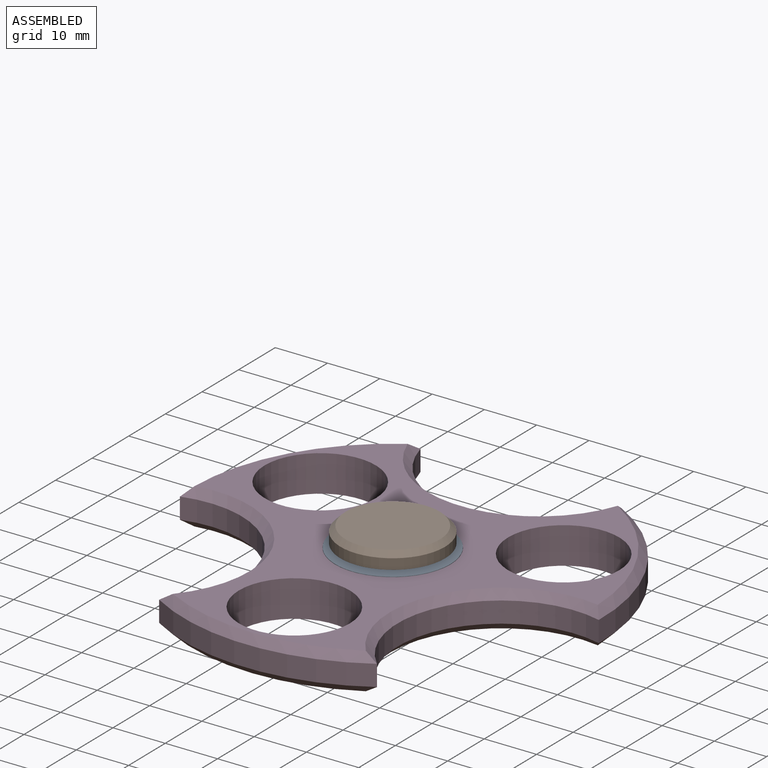
[diagram: assembled view]
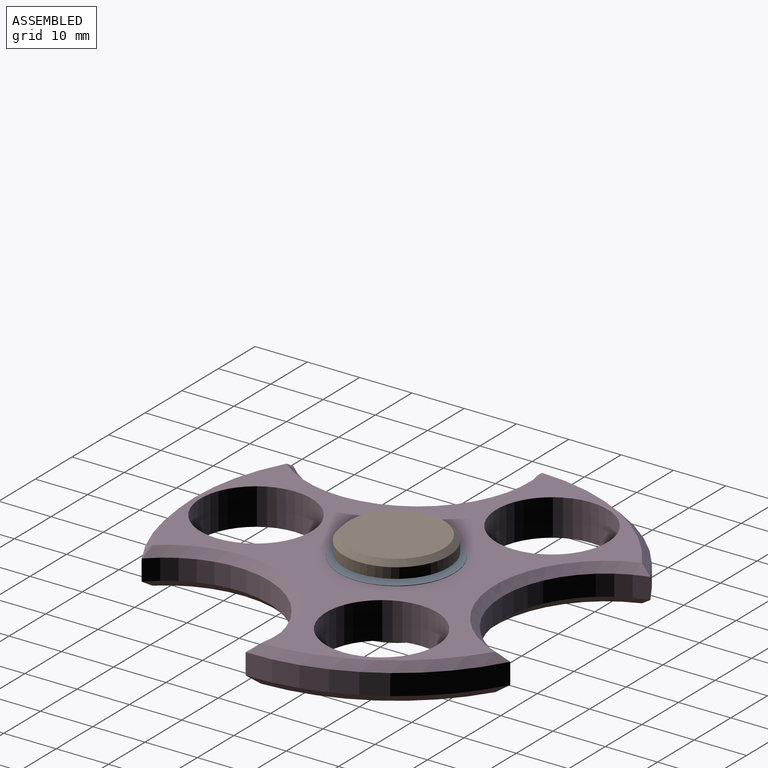
[diagram: assembled view, second angle]
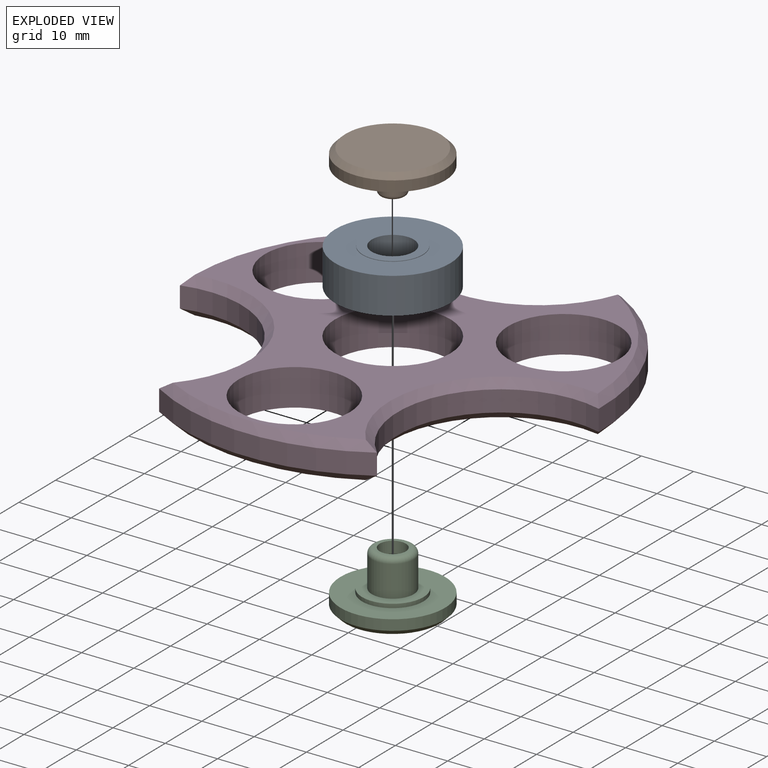
[diagram: exploded view]
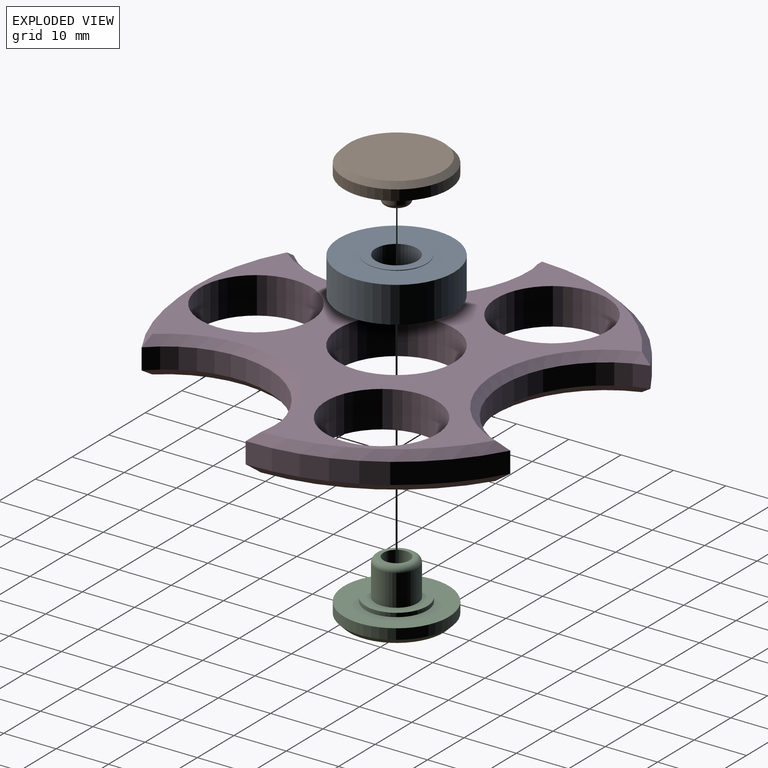
[diagram: exploded view, second angle]
ASSEMBLY  parts=4 mates=3
PART A: 8 faces, bbox 22x22x7.1 mm
  f0: cylinder r=11mm len=22mm, axis (0,0,-1), area 476.9mm2, adj f1,f2
  f1: plane 22x22mm, normal (0,0,1), area 276.3mm2, adj f0,f3
  f2: plane 22x22mm, normal (0,0,-1), area 276.3mm2, adj f0,f5
  f3: cylinder r=5.75mm len=11.5mm, axis (0,0,-1), area 3.6mm2, adj f1,f6
  f4: cylinder r=4mm len=8mm, axis (0,0,-1), area 178.4mm2, adj f6,f7
  f5: cylinder r=5.75mm len=11.5mm, axis (0,0,-1), area 3.6mm2, adj f2,f7
  f6: plane 11.5x11.5mm, normal (0,0,1), area 53.6mm2, adj f3,f4
  f7: plane 11.5x11.5mm, normal (0,0,-1), area 53.6mm2, adj f4,f5
PART B: 9 faces, bbox 20x20x8 mm
  f0: cylinder r=10mm len=20mm, axis (0,0,-1), area 125.7mm2, adj f1,f5
  f1: plane 20x20mm, normal (0,0,1), area 205.7mm2, adj f0,f3
  f2: plane 18x18mm, normal (0,0,-1), area 254.5mm2, adj f5
  f3: cylinder r=5.88mm len=11.75mm, axis (0,0,-1), area 27.7mm2, adj f1,f4
  f4: plane 11.75x11.75mm, normal (0,0,1), area 88.8mm2, adj f3,f8
  f5: cone r=10mm half-angle=45deg, axis (0,0,1), area 84.4mm2, adj f0,f2
  f6: torus R=1.75mm, axis (0,0,1), area 16.5mm2, adj f7,f8
  f7: plane 3.5x3.5mm, normal (0,0,1), area 9.6mm2, adj f6
  f8: cylinder r=2.5mm len=5mm, axis (0,0,-1), area 55mm2, adj f4,f6
PART C: 11 faces, bbox 20x20x10.8 mm
  f0: cylinder r=2.5mm len=7mm, axis (0,0,-1), area 110mm2, adj f2,f10
  f1: cylinder r=4mm len=8mm, axis (0,0,-1), area 150.8mm2, adj f7,f8
  f2: plane 6x6mm, normal (0,0,1), area 8.6mm2, adj f0,f8
  f3: plane 18x18mm, normal (0,0,-1), area 254.5mm2, adj f9
  f4: cylinder r=10mm len=20mm, axis (0,0,-1), area 125.7mm2, adj f5,f9
  f5: plane 20x20mm, normal (0,0,1), area 205.7mm2, adj f4,f6
  f6: cylinder r=5.88mm len=11.75mm, axis (0,0,-1), area 27.7mm2, adj f5,f7
  f7: plane 11.75x11.75mm, normal (0,0,1), area 58.2mm2, adj f1,f6
  f8: torus R=3mm, axis (0,0,1), area 35.9mm2, adj f1,f2
  f9: cone r=10mm half-angle=45deg, axis (0,0,1), area 84.4mm2, adj f3,f4
  f10: plane 5x5mm, normal (0,0,1), area 19.6mm2, adj f0
PART D: 24 faces, bbox 80.8x75.1x7 mm
  f0: cylinder r=40mm len=41.61mm, axis (0,0,-1), area 175mm2, adj f1,f8,f15,f21
  f1: cylinder r=19.8mm len=33.99mm, axis (0,0,-1), area 209.2mm2, adj f0,f2,f13,f19
  f2: cylinder r=40mm len=35.99mm, axis (0,0,-1), area 175mm2, adj f1,f3,f12,f18
  f3: cylinder r=19.8mm len=38.37mm, axis (0,0,-1), area 209.2mm2, adj f2,f4,f14,f20
  f4: cylinder r=40mm len=36.08mm, axis (0,0,-1), area 175mm2, adj f3,f8,f16,f22
  f5: cylinder r=11.03mm len=22.05mm, axis (0,0,-1), area 484.9mm2, adj f10,f11
  f6: cylinder r=10.62mm len=21.25mm, axis (0,0,-1), area 467.3mm2, adj f10,f11
  f7: cylinder r=10.62mm len=21.25mm, axis (0,0,-1), area 467.3mm2, adj f10,f11
  f8: cylinder r=19.8mm len=33.94mm, axis (0,0,-1), area 209.2mm2, adj f0,f4,f17,f23
  f9: cylinder r=10.62mm len=21.25mm, axis (0,0,-1), area 467.3mm2, adj f10,f11
  f10: plane 76.98x71.4mm, normal (0,0,1), area 1508mm2, adj f5,f6,f7,f9,f12,f13,f14,f15
  f11: plane 76.98x71.4mm, normal (0,0,-1), area 1508mm2, adj f5,f6,f7,f9,f18,f19,f20,f21
  f12: cone r=38.5mm half-angle=45deg, axis (0,0,-1), area 87.1mm2, adj f2,f10,f13,f14
  f13: cone r=19.8mm half-angle=45deg, axis (0,0,1), area 111mm2, adj f1,f10,f12,f15
  f14: cone r=19.8mm half-angle=45deg, axis (0,0,1), area 111mm2, adj f3,f10,f12,f16
  f15: cone r=38.5mm half-angle=45deg, axis (0,0,-1), area 87.1mm2, adj f0,f10,f13,f17
  f16: cone r=38.5mm half-angle=45deg, axis (0,0,-1), area 87.1mm2, adj f4,f10,f14,f17
  f17: cone r=19.8mm half-angle=45deg, axis (0,0,1), area 111mm2, adj f8,f10,f15,f16
  f18: cone r=40mm half-angle=45deg, axis (0,0,1), area 87.1mm2, adj f2,f11,f19,f20
  f19: cone r=21.3mm half-angle=45deg, axis (0,0,-1), area 111mm2, adj f1,f11,f18,f21
  f20: cone r=21.3mm half-angle=45deg, axis (0,0,-1), area 111mm2, adj f3,f11,f18,f22
  f21: cone r=40mm half-angle=45deg, axis (0,0,1), area 87.1mm2, adj f0,f11,f19,f23
  f22: cone r=40mm half-angle=45deg, axis (0,0,1), area 87.1mm2, adj f4,f11,f20,f23
  f23: cone r=21.3mm half-angle=45deg, axis (0,0,-1), area 111mm2, adj f8,f11,f21,f22
PLACE A t=(-97.16,-41.92,-2.68)mm
PLACE B rot(axis=(0,1,0),180deg) t=(-77.09,-41.92,7.95)mm
PLACE C rot(axis=(0,0,1),180deg) t=(-119.03,-41.92,-6.59)mm
PLACE D rot(axis=(0,1,0),0deg) t=(-97.16,-41.92,-2.85)mm
MATE slider D.f0 <-> C.f0  axis (0,0,-1) through (-97.16,-41.92,-2.85)mm
MATE cylindrical A.f4 <-> C.f0  axis (0,0,1) through (-97.16,-41.92,4.32)mm
MATE slider C.f0 <-> B.f0  axis (0,0,1) through (-97.16,-41.92,4.16)mm
